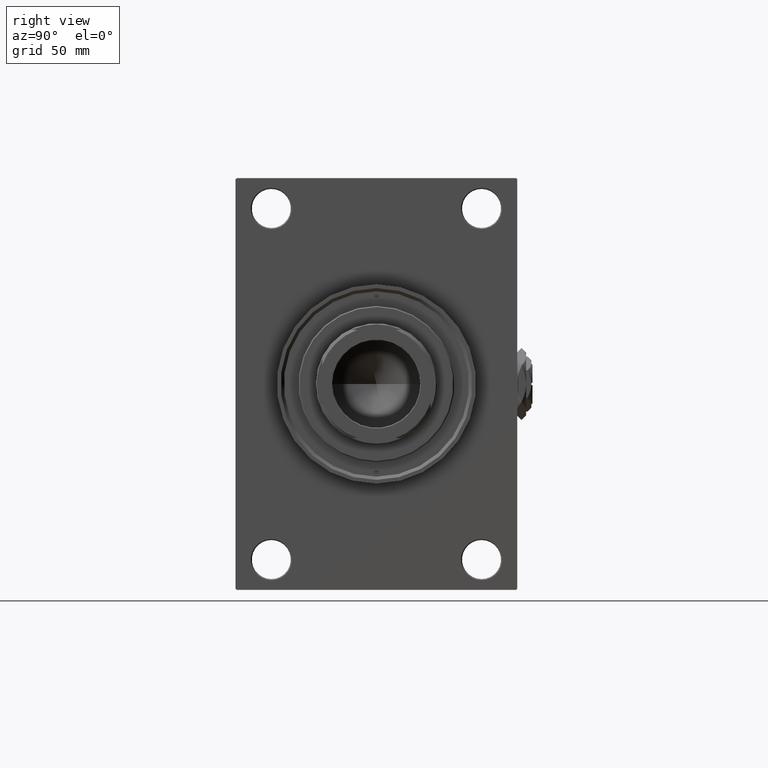
[diagram: clean part render]
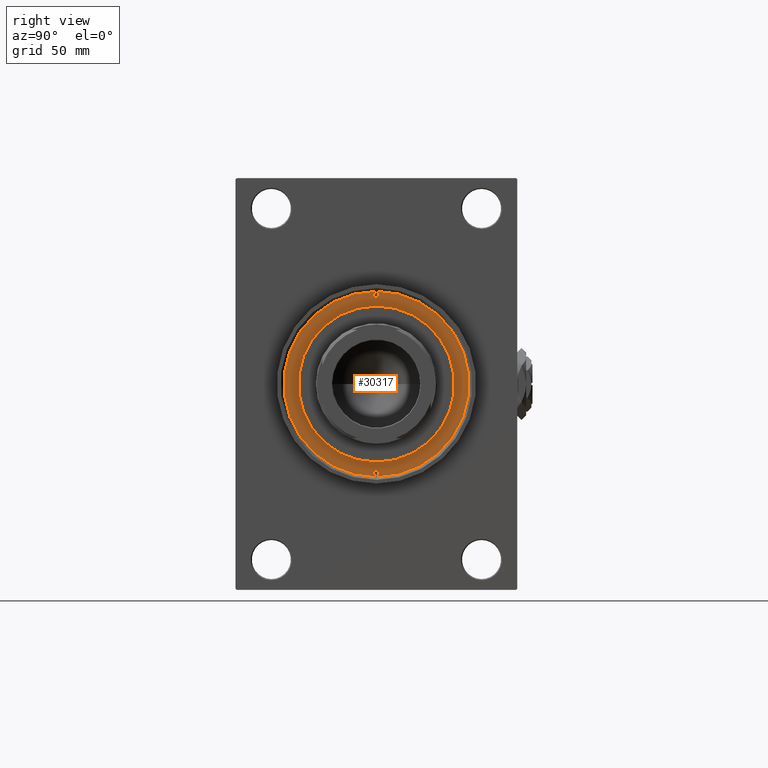
[diagram: same view with one face highlighted and labeled with its STEP entity id]
A machine part, right view. The second image highlights one B-rep face of the part: STEP entity #30317.
In plain terms, the highlighted planar face has unit normal (1, -0, -0).
Its self-contained STEP definition (entity closure, byte-faithful):
#714 = AXIS2_PLACEMENT_3D ( 'NONE', #41599, #22106, #7156 ) ;
#1324 = VERTEX_POINT ( 'NONE', #16740 ) ;
#2336 = CARTESIAN_POINT ( 'NONE',  ( 39.75000000000000000, 1.530808498934193050E-16, 43.25999999999999801 ) ) ;
#2717 = VERTEX_POINT ( 'NONE', #20922 ) ;
#3108 = CARTESIAN_POINT ( 'NONE',  ( 0.000000000000000000, 0.000000000000000000, 43.25999999999999801 ) ) ;
#3699 = DIRECTION ( 'NONE',  ( 0.000000000000000000, 0.000000000000000000, 1.000000000000000000 ) ) ;
#3933 = AXIS2_PLACEMENT_3D ( 'NONE', #11972, #15260, #31489 ) ;
#4325 = AXIS2_PLACEMENT_3D ( 'NONE', #23590, #30247, #34061 ) ;
#7031 = ORIENTED_EDGE ( 'NONE', *, *, #35260, .F. ) ;
#7156 = DIRECTION ( 'NONE',  ( 1.000000000000000000, 0.000000000000000000, 0.000000000000000000 ) ) ;
#7240 = CARTESIAN_POINT ( 'NONE',  ( 0.000000000000000000, 0.000000000000000000, 43.25999999999999801 ) ) ;
#7776 = ORIENTED_EDGE ( 'NONE', *, *, #41678, .T. ) ;
#7999 = ORIENTED_EDGE ( 'NONE', *, *, #41527, .F. ) ;
#8003 = FACE_BOUND ( 'NONE', #9124, .T. ) ;
#8142 = EDGE_CURVE ( 'NONE', #27706, #13740, #18055, .T. ) ;
#8424 = CARTESIAN_POINT ( 'NONE',  ( 0.000000000000000000, 0.000000000000000000, 43.25999999999999801 ) ) ;
#9124 = EDGE_LOOP ( 'NONE', ( #42445, #7031 ) ) ;
#10213 = CARTESIAN_POINT ( 'NONE',  ( -41.00000000000000000, 0.000000000000000000, 43.25999999999999801 ) ) ;
#10427 = CIRCLE ( 'NONE', #40260, 36.00000000000000000 ) ;
#10632 = ORIENTED_EDGE ( 'NONE', *, *, #8142, .F. ) ;
#11036 = DIRECTION ( 'NONE',  ( 1.000000000000000000, 0.000000000000000000, -0.000000000000000000 ) ) ;
#11972 = CARTESIAN_POINT ( 'NONE',  ( 0.000000000000000000, 0.000000000000000000, 43.25999999999999801 ) ) ;
#13740 = VERTEX_POINT ( 'NONE', #16318 ) ;
#13800 = EDGE_CURVE ( 'NONE', #2717, #22594, #32794, .T. ) ;
#14010 = VERTEX_POINT ( 'NONE', #39796 ) ;
#14047 = EDGE_LOOP ( 'NONE', ( #40655, #10632 ) ) ;
#14183 = AXIS2_PLACEMENT_3D ( 'NONE', #3108, #26404, #49440 ) ;
#15092 = FACE_BOUND ( 'NONE', #14047, .T. ) ;
#15260 = DIRECTION ( 'NONE',  ( 0.000000000000000000, 0.000000000000000000, 1.000000000000000000 ) ) ;
#15548 = EDGE_CURVE ( 'NONE', #46007, #1324, #16700, .T. ) ;
#16210 = DIRECTION ( 'NONE',  ( -0.000000000000000000, -0.000000000000000000, 1.000000000000000000 ) ) ;
#16318 = CARTESIAN_POINT ( 'NONE',  ( 42.25000000000000000, 0.000000000000000000, 43.25999999999999801 ) ) ;
#16692 = AXIS2_PLACEMENT_3D ( 'NONE', #7240, #3699, #11036 ) ;
#16700 = CIRCLE ( 'NONE', #26382, 1.250000000000001110 ) ;
#16740 = CARTESIAN_POINT ( 'NONE',  ( -42.25000000000000000, 1.530808498934193050E-16, 43.25999999999999801 ) ) ;
#17323 = DIRECTION ( 'NONE',  ( -0.000000000000000000, -0.000000000000000000, 1.000000000000000000 ) ) ;
#18055 = CIRCLE ( 'NONE', #4325, 1.250000000000001110 ) ;
#19671 = FACE_BOUND ( 'NONE', #29505, .T. ) ;
#20015 = CARTESIAN_POINT ( 'NONE',  ( 41.00000000000000000, 0.000000000000000000, 43.25999999999999801 ) ) ;
#20922 = CARTESIAN_POINT ( 'NONE',  ( -42.75000000000000000, 0.000000000000000000, 43.25999999999999801 ) ) ;
#21756 = CIRCLE ( 'NONE', #714, 36.00000000000000000 ) ;
#22106 = DIRECTION ( 'NONE',  ( 0.000000000000000000, 0.000000000000000000, 1.000000000000000000 ) ) ;
#22449 = PLANE ( 'NONE',  #16692 ) ;
#22594 = VERTEX_POINT ( 'NONE', #36313 ) ;
#23126 = AXIS2_PLACEMENT_3D ( 'NONE', #10213, #34472, #48213 ) ;
#23244 = VERTEX_POINT ( 'NONE', #28038 ) ;
#23590 = CARTESIAN_POINT ( 'NONE',  ( 41.00000000000000000, 0.000000000000000000, 43.25999999999999801 ) ) ;
#23875 = DIRECTION ( 'NONE',  ( 0.000000000000000000, 0.000000000000000000, 1.000000000000000000 ) ) ;
#26382 = AXIS2_PLACEMENT_3D ( 'NONE', #48458, #17323, #32784 ) ;
#26404 = DIRECTION ( 'NONE',  ( 0.000000000000000000, 0.000000000000000000, 1.000000000000000000 ) ) ;
#27706 = VERTEX_POINT ( 'NONE', #2336 ) ;
#28038 = CARTESIAN_POINT ( 'NONE',  ( -36.00000000000000000, 0.000000000000000000, 43.25999999999999801 ) ) ;
#29062 = CIRCLE ( 'NONE', #33921, 1.250000000000001110 ) ;
#29505 = EDGE_LOOP ( 'NONE', ( #29539, #7999 ) ) ;
#29539 = ORIENTED_EDGE ( 'NONE', *, *, #42436, .F. ) ;
#29548 = ORIENTED_EDGE ( 'NONE', *, *, #13800, .T. ) ;
#29569 = CIRCLE ( 'NONE', #23126, 1.250000000000001110 ) ;
#30247 = DIRECTION ( 'NONE',  ( -0.000000000000000000, -0.000000000000000000, 1.000000000000000000 ) ) ;
#30317 = ADVANCED_FACE ( 'NONE', ( #8003, #15092, #19671, #34122 ), #22449, .T. ) ;
#30992 = DIRECTION ( 'NONE',  ( 1.000000000000000000, 0.000000000000000000, 0.000000000000000000 ) ) ;
#31489 = DIRECTION ( 'NONE',  ( 1.000000000000000000, 0.000000000000000000, 0.000000000000000000 ) ) ;
#32784 = DIRECTION ( 'NONE',  ( 1.000000000000000000, 0.000000000000000000, 0.000000000000000000 ) ) ;
#32794 = CIRCLE ( 'NONE', #14183, 42.75000000000000000 ) ;
#33921 = AXIS2_PLACEMENT_3D ( 'NONE', #20015, #16210, #35711 ) ;
#34061 = DIRECTION ( 'NONE',  ( 1.000000000000000000, 0.000000000000000000, 0.000000000000000000 ) ) ;
#34122 = FACE_OUTER_BOUND ( 'NONE', #41880, .T. ) ;
#34472 = DIRECTION ( 'NONE',  ( -0.000000000000000000, -0.000000000000000000, 1.000000000000000000 ) ) ;
#35260 = EDGE_CURVE ( 'NONE', #1324, #46007, #29569, .T. ) ;
#35711 = DIRECTION ( 'NONE',  ( 1.000000000000000000, 0.000000000000000000, 0.000000000000000000 ) ) ;
#36313 = CARTESIAN_POINT ( 'NONE',  ( 42.75000000000000000, 5.235365066354935472E-15, 43.25999999999999801 ) ) ;
#39724 = CARTESIAN_POINT ( 'NONE',  ( -39.75000000000000000, 0.000000000000000000, 43.25999999999999801 ) ) ;
#39796 = CARTESIAN_POINT ( 'NONE',  ( 36.00000000000000000, 4.408728476930470856E-15, 43.25999999999999801 ) ) ;
#40260 = AXIS2_PLACEMENT_3D ( 'NONE', #8424, #23875, #30992 ) ;
#40655 = ORIENTED_EDGE ( 'NONE', *, *, #45247, .F. ) ;
#41527 = EDGE_CURVE ( 'NONE', #14010, #23244, #21756, .T. ) ;
#41599 = CARTESIAN_POINT ( 'NONE',  ( 0.000000000000000000, 0.000000000000000000, 43.25999999999999801 ) ) ;
#41678 = EDGE_CURVE ( 'NONE', #22594, #2717, #50055, .T. ) ;
#41880 = EDGE_LOOP ( 'NONE', ( #29548, #7776 ) ) ;
#42436 = EDGE_CURVE ( 'NONE', #23244, #14010, #10427, .T. ) ;
#42445 = ORIENTED_EDGE ( 'NONE', *, *, #15548, .F. ) ;
#45247 = EDGE_CURVE ( 'NONE', #13740, #27706, #29062, .T. ) ;
#46007 = VERTEX_POINT ( 'NONE', #39724 ) ;
#48213 = DIRECTION ( 'NONE',  ( 1.000000000000000000, 0.000000000000000000, 0.000000000000000000 ) ) ;
#48458 = CARTESIAN_POINT ( 'NONE',  ( -41.00000000000000000, 0.000000000000000000, 43.25999999999999801 ) ) ;
#49440 = DIRECTION ( 'NONE',  ( 1.000000000000000000, 0.000000000000000000, 0.000000000000000000 ) ) ;
#50055 = CIRCLE ( 'NONE', #3933, 42.75000000000000000 ) ;